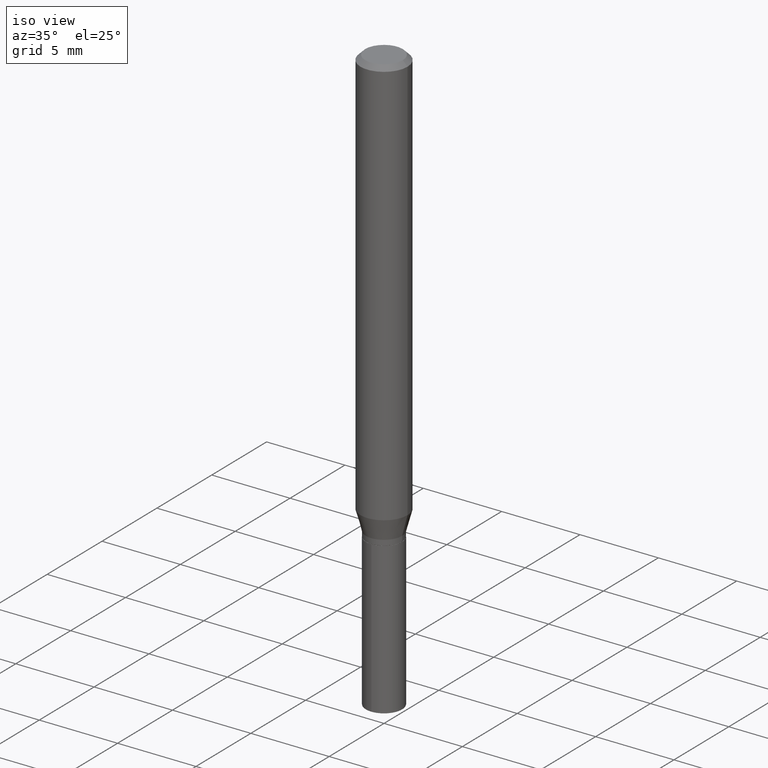
[diagram: clean part render]
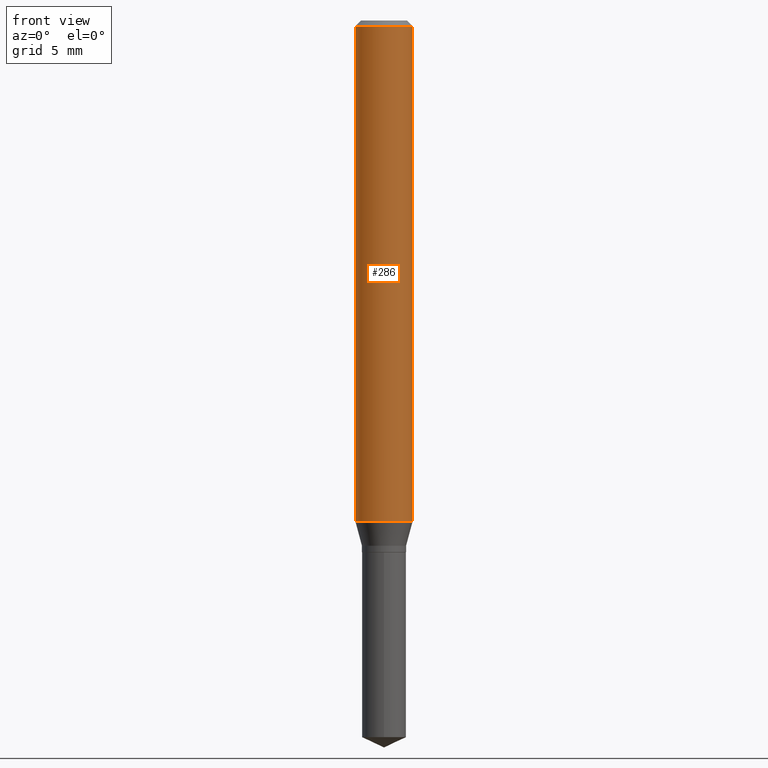
[diagram: tour spotlight — one face highlighted and labeled with its STEP entity id]
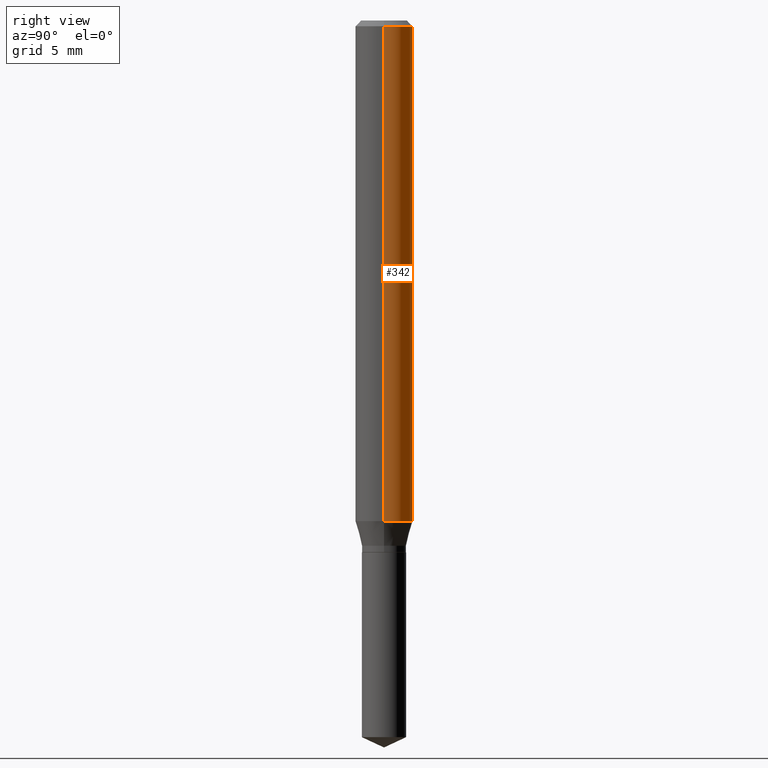
[diagram: tour spotlight — one face highlighted and labeled with its STEP entity id]
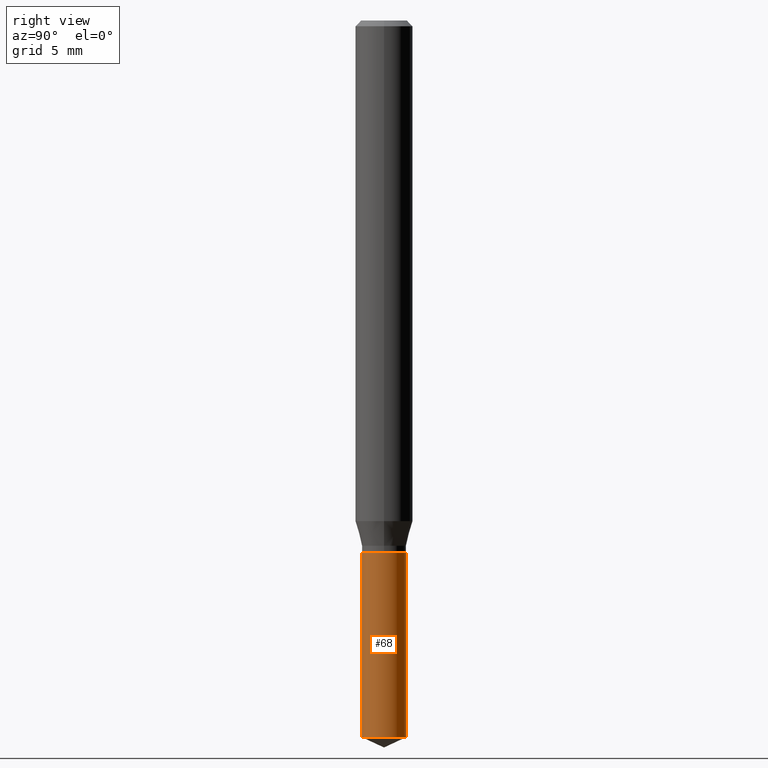
[diagram: tour spotlight — one face highlighted and labeled with its STEP entity id]
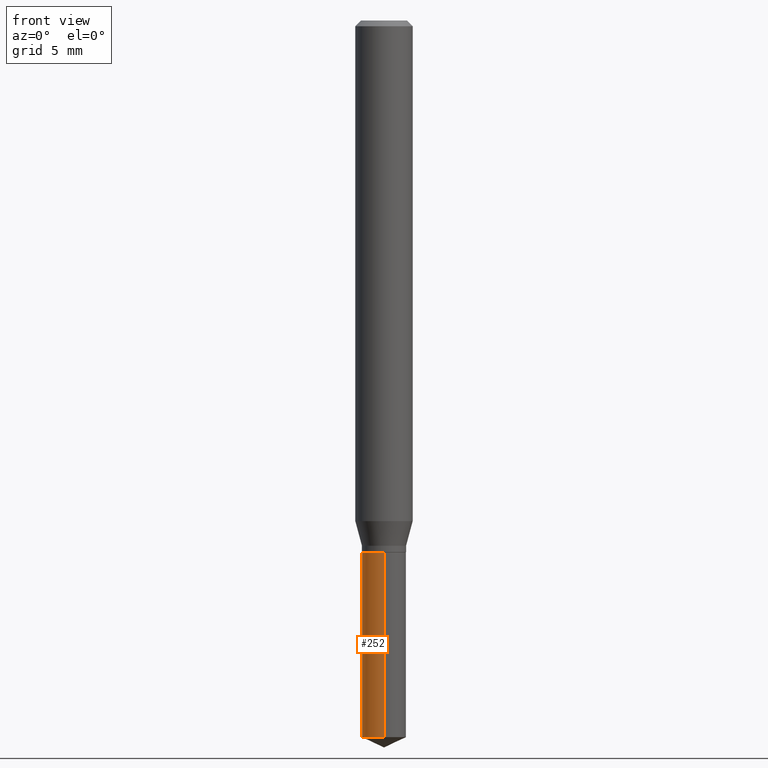
[diagram: tour spotlight — one face highlighted and labeled with its STEP entity id]
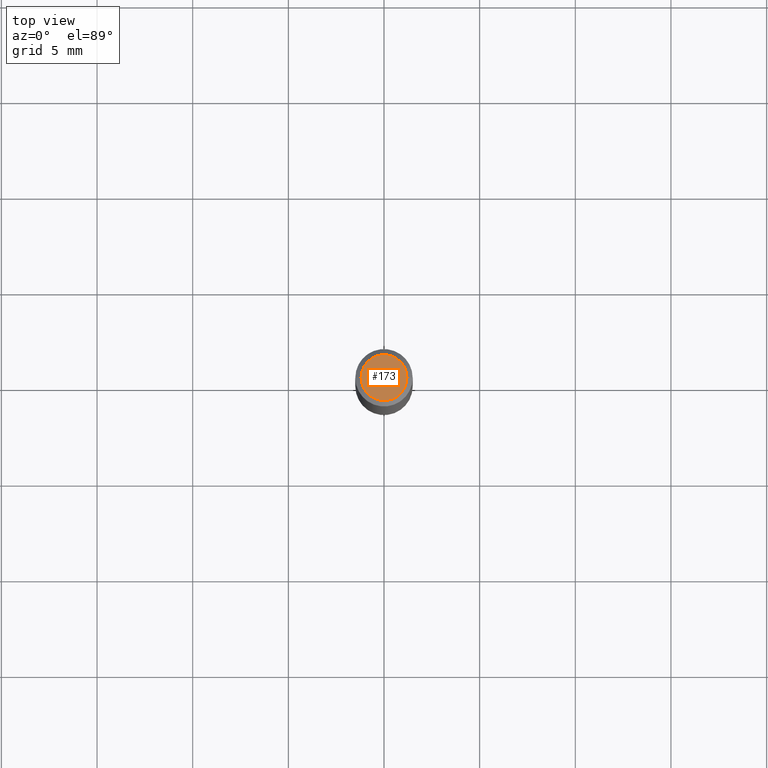
[diagram: tour spotlight — one face highlighted and labeled with its STEP entity id]
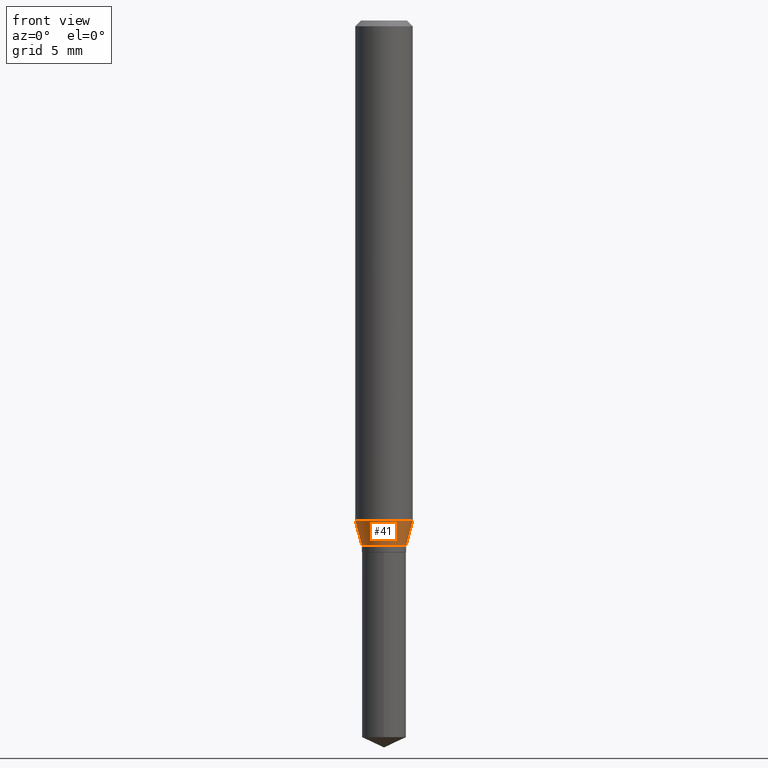
[diagram: tour spotlight — one face highlighted and labeled with its STEP entity id]
A machine part: a face-by-face anatomy tour. The part has 17 B-rep faces; the first image is the clean iso view, then the 6 largest visible faces are spotlighted one at a time (largest first), each with its STEP entity span.

Face 1 — front view, entity #286. In plain terms, the highlighted cylindrical surface (edge-blend (fillet) strip) has radius 1.4999 mm, axis along (-0, 0, 1).
Definition (entity closure, byte-faithful):
#2 = CARTESIAN_POINT ( 'NONE',  ( -0.05905000000000011628, -3.177153447485933561E-15, -1.030144109017062881 ) ) ;
#13 = CARTESIAN_POINT ( 'NONE',  ( 0.05905000000000011628, -4.009072879069648763E-15, -1.030144109017062881 ) ) ;
#15 = CARTESIAN_POINT ( 'NONE',  ( 0.05904999999999999832, -4.535783407291118600E-16, -0.01181000000000007738 ) ) ;
#16 = DIRECTION ( 'NONE',  ( 1.000000000000000000, -6.982962677686266711E-15, 0.000000000000000000 ) ) ;
#20 = VERTEX_POINT ( 'NONE', #123 ) ;
#57 = ORIENTED_EDGE ( 'NONE', *, *, #335, .T. ) ;
#69 = CYLINDRICAL_SURFACE ( 'NONE', #306, 0.05905000000000006077 ) ;
#71 = VECTOR ( 'NONE', #307, 39.37007874015748143 ) ;
#79 = DIRECTION ( 'NONE',  ( -2.445468806185136877E-29, 3.491481338843145188E-15, 1.000000000000000000 ) ) ;
#86 = FACE_OUTER_BOUND ( 'NONE', #183, .T. ) ;
#96 = CARTESIAN_POINT ( 'NONE',  ( 2.519185284476607482E-29, -3.596728932952273843E-15, -1.030144109017062881 ) ) ;
#115 = EDGE_CURVE ( 'NONE', #287, #20, #195, .T. ) ;
#121 = CARTESIAN_POINT ( 'NONE',  ( 0.05905000000000006077, -4.123439461173744764E-16, 2.879382386107503023E-30 ) ) ;
#123 = CARTESIAN_POINT ( 'NONE',  ( -0.05904999999999999832, -1.399406178315665504E-15, -0.01181000000000007738 ) ) ;
#131 = EDGE_CURVE ( 'NONE', #153, #350, #451, .T. ) ;
#153 = VERTEX_POINT ( 'NONE', #13 ) ;
#169 = EDGE_CURVE ( 'NONE', #20, #350, #334, .T. ) ;
#183 = EDGE_LOOP ( 'NONE', ( #473, #57, #219, #470 ) ) ;
#195 = LINE ( 'NONE', #419, #71 ) ;
#198 = DIRECTION ( 'NONE',  ( -2.445468806185136597E-29, 3.491481338843145583E-15, 1.000000000000000000 ) ) ;
#202 = CARTESIAN_POINT ( 'NONE',  ( 2.888098660104665518E-31, -4.123439461173782112E-17, -0.01181000000000007738 ) ) ;
#219 = ORIENTED_EDGE ( 'NONE', *, *, #131, .T. ) ;
#286 = ADVANCED_FACE ( 'NONE', ( #86 ), #69, .T. ) ;
#287 = VERTEX_POINT ( 'NONE', #2 ) ;
#295 = CIRCLE ( 'NONE', #437, 0.05905000000000011628 ) ;
#306 = AXIS2_PLACEMENT_3D ( 'NONE', #490, #198, #418 ) ;
#307 = DIRECTION ( 'NONE',  ( -2.445468806185136877E-29, 3.491481338843145188E-15, 1.000000000000000000 ) ) ;
#334 = CIRCLE ( 'NONE', #370, 0.05904999999999999832 ) ;
#335 = EDGE_CURVE ( 'NONE', #287, #153, #295, .T. ) ;
#350 = VERTEX_POINT ( 'NONE', #15 ) ;
#359 = VECTOR ( 'NONE', #79, 39.37007874015748143 ) ;
#370 = AXIS2_PLACEMENT_3D ( 'NONE', #202, #465, #16 ) ;
#418 = DIRECTION ( 'NONE',  ( 1.000000000000000000, -6.982962677686266711E-15, 4.876176775795935793E-29 ) ) ;
#419 = CARTESIAN_POINT ( 'NONE',  ( -0.05905000000000006077, 4.195754854663395916E-16, -2.904631170795524694E-30 ) ) ;
#426 = DIRECTION ( 'NONE',  ( 1.000000000000000000, -6.982962677686266711E-15, 0.000000000000000000 ) ) ;
#434 = DIRECTION ( 'NONE',  ( -2.445468806185136597E-29, 3.491481338843145583E-15, 1.000000000000000000 ) ) ;
#437 = AXIS2_PLACEMENT_3D ( 'NONE', #96, #434, #426 ) ;
#451 = LINE ( 'NONE', #121, #359 ) ;
#465 = DIRECTION ( 'NONE',  ( -2.445468806185136597E-29, 3.491481338843145583E-15, 1.000000000000000000 ) ) ;
#470 = ORIENTED_EDGE ( 'NONE', *, *, #169, .F. ) ;
#473 = ORIENTED_EDGE ( 'NONE', *, *, #115, .F. ) ;
#490 = CARTESIAN_POINT ( 'NONE',  ( 0.000000000000000000, 0.000000000000000000, 0.000000000000000000 ) ) ;

Face 2 — right view, entity #342. In plain terms, the highlighted cylindrical surface (edge-blend (fillet) strip) has radius 1.4999 mm, axis along (-0, 0, 1).
Definition (entity closure, byte-faithful):
#2 = CARTESIAN_POINT ( 'NONE',  ( -0.05905000000000011628, -3.177153447485933561E-15, -1.030144109017062881 ) ) ;
#10 = CYLINDRICAL_SURFACE ( 'NONE', #53, 0.05905000000000006077 ) ;
#13 = CARTESIAN_POINT ( 'NONE',  ( 0.05905000000000011628, -4.009072879069648763E-15, -1.030144109017062881 ) ) ;
#15 = CARTESIAN_POINT ( 'NONE',  ( 0.05904999999999999832, -4.535783407291118600E-16, -0.01181000000000007738 ) ) ;
#20 = VERTEX_POINT ( 'NONE', #123 ) ;
#53 = AXIS2_PLACEMENT_3D ( 'NONE', #239, #394, #94 ) ;
#60 = ORIENTED_EDGE ( 'NONE', *, *, #115, .T. ) ;
#71 = VECTOR ( 'NONE', #307, 39.37007874015748143 ) ;
#79 = DIRECTION ( 'NONE',  ( -2.445468806185136877E-29, 3.491481338843145188E-15, 1.000000000000000000 ) ) ;
#87 = CARTESIAN_POINT ( 'NONE',  ( 2.888098660104665518E-31, -4.123439461173782112E-17, -0.01181000000000007738 ) ) ;
#94 = DIRECTION ( 'NONE',  ( 1.000000000000000000, -6.982962677686266711E-15, 4.876176775795935793E-29 ) ) ;
#105 = ORIENTED_EDGE ( 'NONE', *, *, #273, .F. ) ;
#111 = AXIS2_PLACEMENT_3D ( 'NONE', #225, #375, #141 ) ;
#115 = EDGE_CURVE ( 'NONE', #287, #20, #195, .T. ) ;
#121 = CARTESIAN_POINT ( 'NONE',  ( 0.05905000000000006077, -4.123439461173744764E-16, 2.879382386107503023E-30 ) ) ;
#123 = CARTESIAN_POINT ( 'NONE',  ( -0.05904999999999999832, -1.399406178315665504E-15, -0.01181000000000007738 ) ) ;
#131 = EDGE_CURVE ( 'NONE', #153, #350, #451, .T. ) ;
#141 = DIRECTION ( 'NONE',  ( 1.000000000000000000, -6.982962677686266711E-15, 0.000000000000000000 ) ) ;
#153 = VERTEX_POINT ( 'NONE', #13 ) ;
#187 = ORIENTED_EDGE ( 'NONE', *, *, #380, .T. ) ;
#195 = LINE ( 'NONE', #419, #71 ) ;
#208 = CIRCLE ( 'NONE', #329, 0.05904999999999999832 ) ;
#220 = ORIENTED_EDGE ( 'NONE', *, *, #131, .F. ) ;
#225 = CARTESIAN_POINT ( 'NONE',  ( 2.519185284476607482E-29, -3.596728932952273843E-15, -1.030144109017062881 ) ) ;
#239 = CARTESIAN_POINT ( 'NONE',  ( 0.000000000000000000, 0.000000000000000000, 0.000000000000000000 ) ) ;
#273 = EDGE_CURVE ( 'NONE', #350, #20, #208, .T. ) ;
#278 = DIRECTION ( 'NONE',  ( -2.445468806185136597E-29, 3.491481338843145583E-15, 1.000000000000000000 ) ) ;
#287 = VERTEX_POINT ( 'NONE', #2 ) ;
#307 = DIRECTION ( 'NONE',  ( -2.445468806185136877E-29, 3.491481338843145188E-15, 1.000000000000000000 ) ) ;
#329 = AXIS2_PLACEMENT_3D ( 'NONE', #87, #278, #427 ) ;
#342 = ADVANCED_FACE ( 'NONE', ( #462 ), #10, .T. ) ;
#350 = VERTEX_POINT ( 'NONE', #15 ) ;
#359 = VECTOR ( 'NONE', #79, 39.37007874015748143 ) ;
#375 = DIRECTION ( 'NONE',  ( -2.445468806185136597E-29, 3.491481338843145583E-15, 1.000000000000000000 ) ) ;
#380 = EDGE_CURVE ( 'NONE', #153, #287, #442, .T. ) ;
#394 = DIRECTION ( 'NONE',  ( -2.445468806185136597E-29, 3.491481338843145583E-15, 1.000000000000000000 ) ) ;
#405 = EDGE_LOOP ( 'NONE', ( #187, #60, #105, #220 ) ) ;
#419 = CARTESIAN_POINT ( 'NONE',  ( -0.05905000000000006077, 4.195754854663395916E-16, -2.904631170795524694E-30 ) ) ;
#427 = DIRECTION ( 'NONE',  ( 1.000000000000000000, -6.982962677686266711E-15, 0.000000000000000000 ) ) ;
#442 = CIRCLE ( 'NONE', #111, 0.05905000000000011628 ) ;
#451 = LINE ( 'NONE', #121, #359 ) ;
#462 = FACE_OUTER_BOUND ( 'NONE', #405, .T. ) ;

Face 3 — right view, entity #68. In plain terms, the highlighted cylindrical surface (edge-blend (fillet) strip) has radius 1.1544 mm, axis along (-0, 0, 1).
Definition (entity closure, byte-faithful):
#5 = CARTESIAN_POINT ( 'NONE',  ( -3.173756537008140153E-16, -0.04545000000000382068, -1.094499999999999806 ) ) ;
#32 = ORIENTED_EDGE ( 'NONE', *, *, #247, .F. ) ;
#35 = CIRCLE ( 'NONE', #467, 0.04544999999999999735 ) ;
#49 = CARTESIAN_POINT ( 'NONE',  ( -3.173756537008046476E-16, -0.04545000000000514601, -1.474906316936855033 ) ) ;
#50 = EDGE_CURVE ( 'NONE', #326, #310, #270, .T. ) ;
#52 = AXIS2_PLACEMENT_3D ( 'NONE', #260, #408, #67 ) ;
#58 = AXIS2_PLACEMENT_3D ( 'NONE', #210, #429, #313 ) ;
#67 = DIRECTION ( 'NONE',  ( -6.982962677686265133E-15, -1.000000000000000000, 3.005333326363326041E-15 ) ) ;
#68 = ADVANCED_FACE ( 'NONE', ( #114 ), #162, .T. ) ;
#103 = ORIENTED_EDGE ( 'NONE', *, *, #50, .T. ) ;
#114 = FACE_OUTER_BOUND ( 'NONE', #443, .T. ) ;
#118 = CARTESIAN_POINT ( 'NONE',  ( 2.676565608369631794E-29, -3.821426325363822773E-15, -1.094499999999999806 ) ) ;
#148 = VECTOR ( 'NONE', #369, 39.37007874015748143 ) ;
#162 = CYLINDRICAL_SURFACE ( 'NONE', #52, 0.04544999999999999735 ) ;
#164 = EDGE_CURVE ( 'NONE', #347, #326, #431, .T. ) ;
#174 = LINE ( 'NONE', #5, #288 ) ;
#185 = ORIENTED_EDGE ( 'NONE', *, *, #458, .F. ) ;
#210 = CARTESIAN_POINT ( 'NONE',  ( 3.606833621484513681E-29, -5.149613279019524657E-15, -1.474906316936855477 ) ) ;
#228 = CARTESIAN_POINT ( 'NONE',  ( 3.229416734030016060E-16, 0.04544999999999484175, -1.474906316936855699 ) ) ;
#237 = DIRECTION ( 'NONE',  ( -2.445458899330790108E-29, 3.491495526022433599E-15, 1.000000000000000000 ) ) ;
#247 = EDGE_CURVE ( 'NONE', #347, #364, #174, .T. ) ;
#260 = CARTESIAN_POINT ( 'NONE',  ( 2.676565608369631794E-29, -3.821426325363822773E-15, -1.094499999999999806 ) ) ;
#270 = LINE ( 'NONE', #298, #148 ) ;
#288 = VECTOR ( 'NONE', #237, 39.37007874015748143 ) ;
#298 = CARTESIAN_POINT ( 'NONE',  ( 3.229416734029921890E-16, 0.04544999999999617402, -1.094500000000000028 ) ) ;
#310 = VERTEX_POINT ( 'NONE', #450 ) ;
#313 = DIRECTION ( 'NONE',  ( -6.982962677686265133E-15, -1.000000000000000000, 6.010666652726652082E-15 ) ) ;
#326 = VERTEX_POINT ( 'NONE', #228 ) ;
#347 = VERTEX_POINT ( 'NONE', #49 ) ;
#364 = VERTEX_POINT ( 'NONE', #417 ) ;
#369 = DIRECTION ( 'NONE',  ( -2.445458899330790108E-29, 3.491495526022433599E-15, 1.000000000000000000 ) ) ;
#378 = DIRECTION ( 'NONE',  ( -6.982962677686265133E-15, -1.000000000000000000, 3.005333326363326041E-15 ) ) ;
#403 = ORIENTED_EDGE ( 'NONE', *, *, #164, .T. ) ;
#408 = DIRECTION ( 'NONE',  ( -2.445458899330790108E-29, 3.491495526022433205E-15, 1.000000000000000000 ) ) ;
#417 = CARTESIAN_POINT ( 'NONE',  ( -3.173756537008140153E-16, -0.04545000000000382068, -1.094499999999999806 ) ) ;
#429 = DIRECTION ( 'NONE',  ( -2.445458899330790108E-29, 3.491495526022433205E-15, 1.000000000000000000 ) ) ;
#431 = CIRCLE ( 'NONE', #58, 0.04544999999999999735 ) ;
#443 = EDGE_LOOP ( 'NONE', ( #403, #103, #185, #32 ) ) ;
#450 = CARTESIAN_POINT ( 'NONE',  ( 3.229416734030015567E-16, 0.04544999999999617402, -1.094500000000000028 ) ) ;
#458 = EDGE_CURVE ( 'NONE', #364, #310, #35, .T. ) ;
#467 = AXIS2_PLACEMENT_3D ( 'NONE', #118, #486, #378 ) ;
#486 = DIRECTION ( 'NONE',  ( -2.445458899330790108E-29, 3.491495526022433205E-15, 1.000000000000000000 ) ) ;

Face 4 — front view, entity #252. In plain terms, the highlighted cylindrical surface (edge-blend (fillet) strip) has radius 1.1544 mm, axis along (-0, 0, 1).
Definition (entity closure, byte-faithful):
#5 = CARTESIAN_POINT ( 'NONE',  ( -3.173756537008140153E-16, -0.04545000000000382068, -1.094499999999999806 ) ) ;
#23 = DIRECTION ( 'NONE',  ( -6.982962677686265133E-15, -1.000000000000000000, 3.005333326363326041E-15 ) ) ;
#24 = EDGE_LOOP ( 'NONE', ( #367, #253, #290, #362 ) ) ;
#25 = CARTESIAN_POINT ( 'NONE',  ( 2.676565608369631794E-29, -3.821426325363822773E-15, -1.094499999999999806 ) ) ;
#39 = DIRECTION ( 'NONE',  ( -6.982962677686265133E-15, -1.000000000000000000, 6.010666652726652082E-15 ) ) ;
#49 = CARTESIAN_POINT ( 'NONE',  ( -3.173756537008046476E-16, -0.04545000000000514601, -1.474906316936855033 ) ) ;
#50 = EDGE_CURVE ( 'NONE', #326, #310, #270, .T. ) ;
#73 = CIRCLE ( 'NONE', #365, 0.04544999999999999735 ) ;
#148 = VECTOR ( 'NONE', #369, 39.37007874015748143 ) ;
#174 = LINE ( 'NONE', #5, #288 ) ;
#228 = CARTESIAN_POINT ( 'NONE',  ( 3.229416734030016060E-16, 0.04544999999999484175, -1.474906316936855699 ) ) ;
#237 = DIRECTION ( 'NONE',  ( -2.445458899330790108E-29, 3.491495526022433599E-15, 1.000000000000000000 ) ) ;
#240 = DIRECTION ( 'NONE',  ( -2.445458899330790108E-29, 3.491495526022433205E-15, 1.000000000000000000 ) ) ;
#241 = CYLINDRICAL_SURFACE ( 'NONE', #406, 0.04544999999999999735 ) ;
#247 = EDGE_CURVE ( 'NONE', #347, #364, #174, .T. ) ;
#252 = ADVANCED_FACE ( 'NONE', ( #323 ), #241, .T. ) ;
#253 = ORIENTED_EDGE ( 'NONE', *, *, #469, .T. ) ;
#263 = CARTESIAN_POINT ( 'NONE',  ( 3.606833621484513681E-29, -5.149613279019524657E-15, -1.474906316936855477 ) ) ;
#268 = DIRECTION ( 'NONE',  ( -2.445458899330790108E-29, 3.491495526022433205E-15, 1.000000000000000000 ) ) ;
#270 = LINE ( 'NONE', #298, #148 ) ;
#288 = VECTOR ( 'NONE', #237, 39.37007874015748143 ) ;
#290 = ORIENTED_EDGE ( 'NONE', *, *, #247, .T. ) ;
#298 = CARTESIAN_POINT ( 'NONE',  ( 3.229416734029921890E-16, 0.04544999999999617402, -1.094500000000000028 ) ) ;
#310 = VERTEX_POINT ( 'NONE', #450 ) ;
#323 = FACE_OUTER_BOUND ( 'NONE', #24, .T. ) ;
#326 = VERTEX_POINT ( 'NONE', #228 ) ;
#347 = VERTEX_POINT ( 'NONE', #49 ) ;
#362 = ORIENTED_EDGE ( 'NONE', *, *, #388, .F. ) ;
#364 = VERTEX_POINT ( 'NONE', #417 ) ;
#365 = AXIS2_PLACEMENT_3D ( 'NONE', #263, #268, #39 ) ;
#367 = ORIENTED_EDGE ( 'NONE', *, *, #50, .F. ) ;
#369 = DIRECTION ( 'NONE',  ( -2.445458899330790108E-29, 3.491495526022433599E-15, 1.000000000000000000 ) ) ;
#388 = EDGE_CURVE ( 'NONE', #310, #364, #433, .T. ) ;
#392 = CARTESIAN_POINT ( 'NONE',  ( 2.676565608369631794E-29, -3.821426325363822773E-15, -1.094499999999999806 ) ) ;
#399 = AXIS2_PLACEMENT_3D ( 'NONE', #25, #402, #23 ) ;
#402 = DIRECTION ( 'NONE',  ( -2.445458899330790108E-29, 3.491495526022433205E-15, 1.000000000000000000 ) ) ;
#406 = AXIS2_PLACEMENT_3D ( 'NONE', #392, #240, #466 ) ;
#417 = CARTESIAN_POINT ( 'NONE',  ( -3.173756537008140153E-16, -0.04545000000000382068, -1.094499999999999806 ) ) ;
#433 = CIRCLE ( 'NONE', #399, 0.04544999999999999735 ) ;
#450 = CARTESIAN_POINT ( 'NONE',  ( 3.229416734030015567E-16, 0.04544999999999617402, -1.094500000000000028 ) ) ;
#466 = DIRECTION ( 'NONE',  ( -6.982962677686265133E-15, -1.000000000000000000, 3.005333326363326041E-15 ) ) ;
#469 = EDGE_CURVE ( 'NONE', #326, #347, #73, .T. ) ;

Face 5 — top view, entity #173. In plain terms, the highlighted planar face has unit normal (0, -0, -1).
Definition (entity closure, byte-faithful):
#28 = CIRCLE ( 'NONE', #43, 0.04724000000000000421 ) ;
#43 = AXIS2_PLACEMENT_3D ( 'NONE', #439, #331, #227 ) ;
#78 = EDGE_CURVE ( 'NONE', #441, #322, #211, .T. ) ;
#90 = DIRECTION ( 'NONE',  ( 2.438088387897960049E-29, -3.491481338843145188E-15, -1.000000000000000000 ) ) ;
#120 = CARTESIAN_POINT ( 'NONE',  ( 0.04724000000000000421, -3.852183633974369838E-16, -3.380025165621689721E-19 ) ) ;
#167 = AXIS2_PLACEMENT_3D ( 'NONE', #282, #90, #172 ) ;
#172 = DIRECTION ( 'NONE',  ( -1.000000000000000000, 6.982962677686265922E-15, -4.876176775795935793E-29 ) ) ;
#173 = ADVANCED_FACE ( 'NONE', ( #432 ), #244, .F. ) ;
#189 = DIRECTION ( 'NONE',  ( -2.445468806185136597E-29, 3.491481338843145583E-15, 1.000000000000000000 ) ) ;
#211 = CIRCLE ( 'NONE', #232, 0.04724000000000000421 ) ;
#218 = CARTESIAN_POINT ( 'NONE',  ( -0.04724000000000000421, 3.504923541997677355E-16, -3.380025165670481712E-19 ) ) ;
#226 = CARTESIAN_POINT ( 'NONE',  ( 8.265746106709734507E-48, -1.180129479067563789E-33, -3.380025165646692144E-19 ) ) ;
#227 = DIRECTION ( 'NONE',  ( 1.000000000000000000, -6.982962677686266711E-15, 4.876185090822587894E-29 ) ) ;
#232 = AXIS2_PLACEMENT_3D ( 'NONE', #226, #189, #339 ) ;
#244 = PLANE ( 'NONE',  #167 ) ;
#282 = CARTESIAN_POINT ( 'NONE',  ( 4.132873053354867254E-48, -5.900647395337818946E-34, -1.690012582823346072E-19 ) ) ;
#292 = EDGE_LOOP ( 'NONE', ( #440, #401 ) ) ;
#322 = VERTEX_POINT ( 'NONE', #120 ) ;
#331 = DIRECTION ( 'NONE',  ( -2.445468806185136597E-29, 3.491481338843145583E-15, 1.000000000000000000 ) ) ;
#339 = DIRECTION ( 'NONE',  ( 1.000000000000000000, -6.982962677686266711E-15, 4.876185090822587894E-29 ) ) ;
#401 = ORIENTED_EDGE ( 'NONE', *, *, #414, .T. ) ;
#414 = EDGE_CURVE ( 'NONE', #322, #441, #28, .T. ) ;
#432 = FACE_OUTER_BOUND ( 'NONE', #292, .T. ) ;
#439 = CARTESIAN_POINT ( 'NONE',  ( 8.265746106709734507E-48, -1.180129479067563789E-33, -3.380025165646692144E-19 ) ) ;
#440 = ORIENTED_EDGE ( 'NONE', *, *, #78, .T. ) ;
#441 = VERTEX_POINT ( 'NONE', #218 ) ;

Face 6 — front view, entity #41. In plain terms, the highlighted conical surface has half-angle 15 deg.
Definition (entity closure, byte-faithful):
#2 = CARTESIAN_POINT ( 'NONE',  ( -0.05905000000000011628, -3.177153447485933561E-15, -1.030144109017062881 ) ) ;
#9 = VECTOR ( 'NONE', #386, 39.37007874015747433 ) ;
#13 = CARTESIAN_POINT ( 'NONE',  ( 0.05905000000000011628, -4.009072879069648763E-15, -1.030144109017062881 ) ) ;
#22 = ORIENTED_EDGE ( 'NONE', *, *, #233, .T. ) ;
#36 = DIRECTION ( 'NONE',  ( 1.000000000000000000, -6.982962677686265922E-15, 0.000000000000000000 ) ) ;
#41 = ADVANCED_FACE ( 'NONE', ( #444 ), #265, .T. ) ;
#72 = DIRECTION ( 'NONE',  ( -0.2588190451025214611, 5.211531920934551042E-15, 0.9659258262890682012 ) ) ;
#92 = AXIS2_PLACEMENT_3D ( 'NONE', #192, #478, #363 ) ;
#96 = CARTESIAN_POINT ( 'NONE',  ( 2.519185284476607482E-29, -3.596728932952273843E-15, -1.030144109017062881 ) ) ;
#153 = VERTEX_POINT ( 'NONE', #13 ) ;
#177 = ORIENTED_EDGE ( 'NONE', *, *, #445, .T. ) ;
#192 = CARTESIAN_POINT ( 'NONE',  ( 2.643307232605514096E-29, -3.773942179155556299E-15, -1.080899999999999972 ) ) ;
#199 = DIRECTION ( 'NONE',  ( -2.445468806185136597E-29, 3.491481338843145583E-15, 1.000000000000000000 ) ) ;
#233 = EDGE_CURVE ( 'NONE', #330, #153, #280, .T. ) ;
#243 = CARTESIAN_POINT ( 'NONE',  ( 0.04544999999999996959, -4.091317832856396691E-15, -1.080899999999999972 ) ) ;
#265 = CONICAL_SURFACE ( 'NONE', #422, 0.04544999999999996959, 0.2617993877991501295 ) ;
#280 = LINE ( 'NONE', #349, #9 ) ;
#287 = VERTEX_POINT ( 'NONE', #2 ) ;
#295 = CIRCLE ( 'NONE', #437, 0.05905000000000011628 ) ;
#308 = CARTESIAN_POINT ( 'NONE',  ( 2.643307232605514096E-29, -3.773942179155556299E-15, -1.080899999999999972 ) ) ;
#320 = LINE ( 'NONE', #488, #400 ) ;
#324 = CIRCLE ( 'NONE', #92, 0.04544999999999996959 ) ;
#325 = ORIENTED_EDGE ( 'NONE', *, *, #351, .F. ) ;
#330 = VERTEX_POINT ( 'NONE', #243 ) ;
#332 = EDGE_LOOP ( 'NONE', ( #325, #177, #22, #407 ) ) ;
#335 = EDGE_CURVE ( 'NONE', #287, #153, #295, .T. ) ;
#343 = CARTESIAN_POINT ( 'NONE',  ( -0.04544999999999996959, -3.473869708522012529E-15, -1.080899999999999972 ) ) ;
#349 = CARTESIAN_POINT ( 'NONE',  ( 0.04544999999999996959, -4.091317832856396691E-15, -1.080899999999999972 ) ) ;
#351 = EDGE_CURVE ( 'NONE', #436, #287, #320, .T. ) ;
#363 = DIRECTION ( 'NONE',  ( 1.000000000000000000, -6.982962677686265922E-15, 0.000000000000000000 ) ) ;
#386 = DIRECTION ( 'NONE',  ( 0.2588190451025214611, 1.565188264969621573E-15, 0.9659258262890682012 ) ) ;
#400 = VECTOR ( 'NONE', #72, 39.37007874015747433 ) ;
#407 = ORIENTED_EDGE ( 'NONE', *, *, #335, .F. ) ;
#422 = AXIS2_PLACEMENT_3D ( 'NONE', #308, #199, #36 ) ;
#426 = DIRECTION ( 'NONE',  ( 1.000000000000000000, -6.982962677686266711E-15, 0.000000000000000000 ) ) ;
#434 = DIRECTION ( 'NONE',  ( -2.445468806185136597E-29, 3.491481338843145583E-15, 1.000000000000000000 ) ) ;
#436 = VERTEX_POINT ( 'NONE', #343 ) ;
#437 = AXIS2_PLACEMENT_3D ( 'NONE', #96, #434, #426 ) ;
#444 = FACE_OUTER_BOUND ( 'NONE', #332, .T. ) ;
#445 = EDGE_CURVE ( 'NONE', #436, #330, #324, .T. ) ;
#478 = DIRECTION ( 'NONE',  ( -2.445468806185136597E-29, 3.491481338843145583E-15, 1.000000000000000000 ) ) ;
#488 = CARTESIAN_POINT ( 'NONE',  ( -0.04544999999999996959, -3.451000505752590438E-15, -1.080899999999999972 ) ) ;